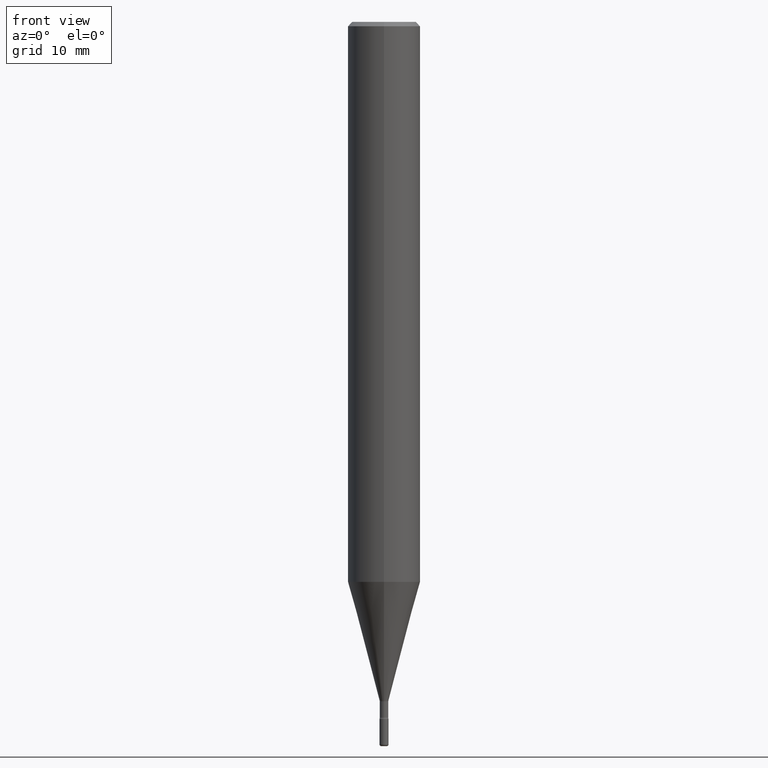
[diagram: clean part render]
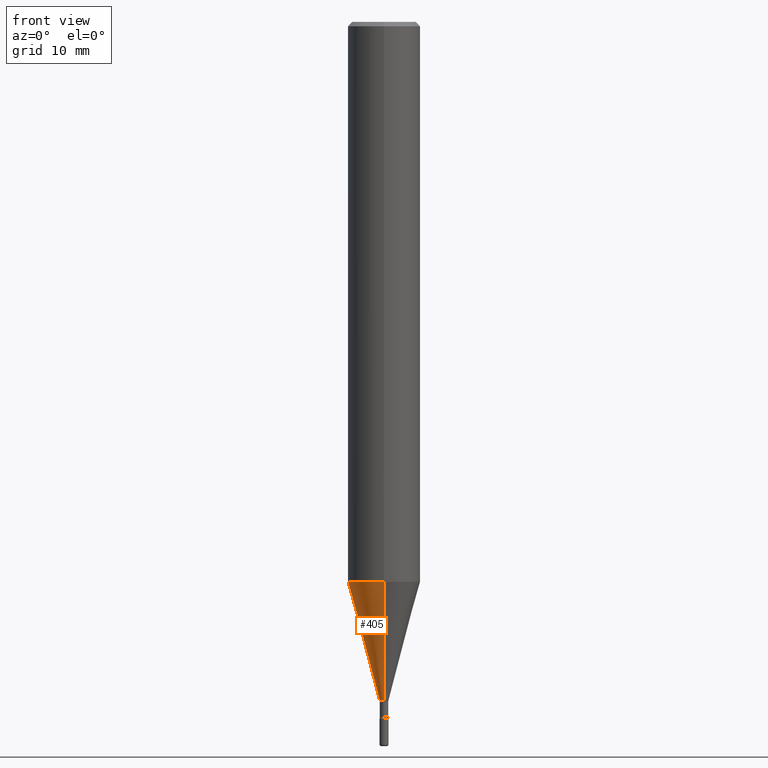
[diagram: same view with one face highlighted and labeled with its STEP entity id]
A machine part, front view. The second image highlights one B-rep face of the part: STEP entity #405.
In plain terms, the highlighted conical surface has half-angle 15 deg.
Its self-contained STEP definition (entity closure, byte-faithful):
#22 = DIRECTION ( 'NONE',  ( -6.982962677686266711E-15, -1.000000000000000000, 0.000000000000000000 ) ) ;
#27 = CARTESIAN_POINT ( 'NONE',  ( 4.727570879489775223E-29, -6.749522768821041427E-15, -1.933168193384775746 ) ) ;
#30 = DIRECTION ( 'NONE',  ( -2.445504170649679612E-29, 3.491430694917099682E-15, 1.000000000000000000 ) ) ;
#37 = CARTESIAN_POINT ( 'NONE',  ( 1.077261842800115440E-16, 0.01516111260565579898, -2.343092501787273463 ) ) ;
#42 = VERTEX_POINT ( 'NONE', #473 ) ;
#48 = VERTEX_POINT ( 'NONE', #69 ) ;
#69 = CARTESIAN_POINT ( 'NONE',  ( -8.728703347107362044E-16, -0.1250000000000067724, -1.933168193384775080 ) ) ;
#80 = EDGE_CURVE ( 'NONE', #42, #409, #359, .T. ) ;
#92 = LINE ( 'NONE', #278, #118 ) ;
#97 = AXIS2_PLACEMENT_3D ( 'NONE', #27, #30, #113 ) ;
#101 = AXIS2_PLACEMENT_3D ( 'NONE', #429, #200, #22 ) ;
#113 = DIRECTION ( 'NONE',  ( -6.982962677686265922E-15, -1.000000000000000000, 4.370956789862821150E-15 ) ) ;
#118 = VECTOR ( 'NONE', #272, 39.37007874015748854 ) ;
#134 = VERTEX_POINT ( 'NONE', #157 ) ;
#135 = CARTESIAN_POINT ( 'NONE',  ( -1.058694834774930434E-16, -0.01516111260567216089, -2.343092501787273463 ) ) ;
#157 = CARTESIAN_POINT ( 'NONE',  ( 8.881784197001723668E-16, 0.1249999999999932554, -1.933168193384776190 ) ) ;
#200 = DIRECTION ( 'NONE',  ( -2.445504170649679612E-29, 3.491430694917099682E-15, 1.000000000000000000 ) ) ;
#214 = DIRECTION ( 'NONE',  ( 1.839019923739598738E-15, 0.2588190451025247363, 0.9659258262890673130 ) ) ;
#240 = EDGE_CURVE ( 'NONE', #42, #134, #529, .T. ) ;
#263 = ORIENTED_EDGE ( 'NONE', *, *, #240, .F. ) ;
#272 = DIRECTION ( 'NONE',  ( -1.807323732225328562E-15, -0.2588190451025179639, 0.9659258262890690894 ) ) ;
#278 = CARTESIAN_POINT ( 'NONE',  ( -1.058694834774930434E-16, -0.01516111260567216089, -2.343092501787273463 ) ) ;
#293 = VECTOR ( 'NONE', #214, 39.37007874015748854 ) ;
#300 = CIRCLE ( 'NONE', #97, 0.1250000000000000000 ) ;
#359 = CIRCLE ( 'NONE', #101, 0.01516111260566397993 ) ;
#366 = CARTESIAN_POINT ( 'NONE',  ( 5.730042485338768716E-29, -8.180745081770186080E-15, -2.343092501787273463 ) ) ;
#390 = AXIS2_PLACEMENT_3D ( 'NONE', #366, #544, #540 ) ;
#405 = ADVANCED_FACE ( 'NONE', ( #539 ), #508, .T. ) ;
#409 = VERTEX_POINT ( 'NONE', #135 ) ;
#424 = EDGE_LOOP ( 'NONE', ( #263, #553, #538, #483 ) ) ;
#426 = EDGE_CURVE ( 'NONE', #409, #48, #92, .T. ) ;
#429 = CARTESIAN_POINT ( 'NONE',  ( 5.730042485338768716E-29, -8.180745081770186080E-15, -2.343092501787273463 ) ) ;
#473 = CARTESIAN_POINT ( 'NONE',  ( 4.979523019900923560E-16, 0.01516111260565579898, -2.343092501787273463 ) ) ;
#483 = ORIENTED_EDGE ( 'NONE', *, *, #490, .F. ) ;
#490 = EDGE_CURVE ( 'NONE', #134, #48, #300, .T. ) ;
#508 = CONICAL_SURFACE ( 'NONE', #390, 0.01516111260566397993, 0.2617993877991500740 ) ;
#529 = LINE ( 'NONE', #37, #293 ) ;
#538 = ORIENTED_EDGE ( 'NONE', *, *, #426, .T. ) ;
#539 = FACE_OUTER_BOUND ( 'NONE', #424, .T. ) ;
#540 = DIRECTION ( 'NONE',  ( -6.982962677686266711E-15, -1.000000000000000000, 0.000000000000000000 ) ) ;
#544 = DIRECTION ( 'NONE',  ( -2.445504170649679612E-29, 3.491430694917099682E-15, 1.000000000000000000 ) ) ;
#553 = ORIENTED_EDGE ( 'NONE', *, *, #80, .T. ) ;